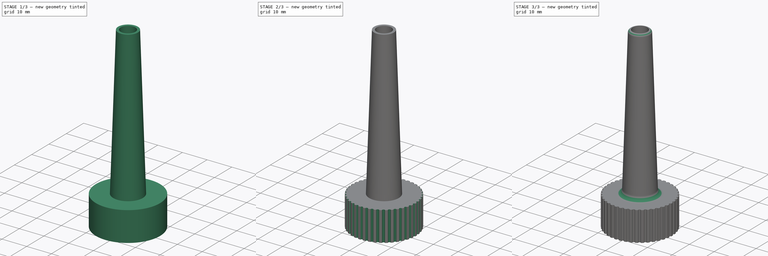
[diagram: build sequence overview — one tinted view per stage of 3, left to right]
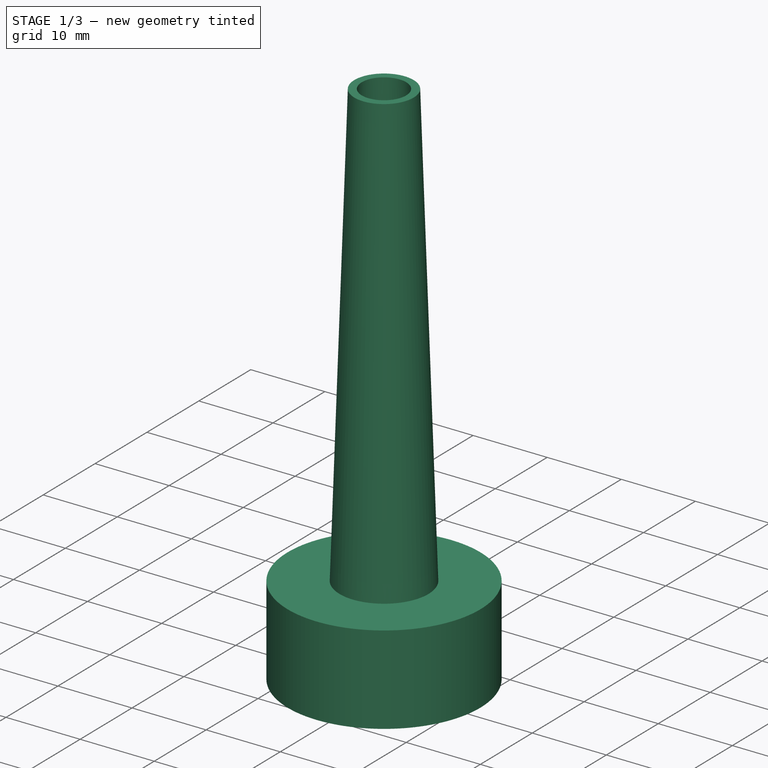
[diagram: stage 1 of 3 — iso view after this stage's code; geometry added in this stage tinted green]
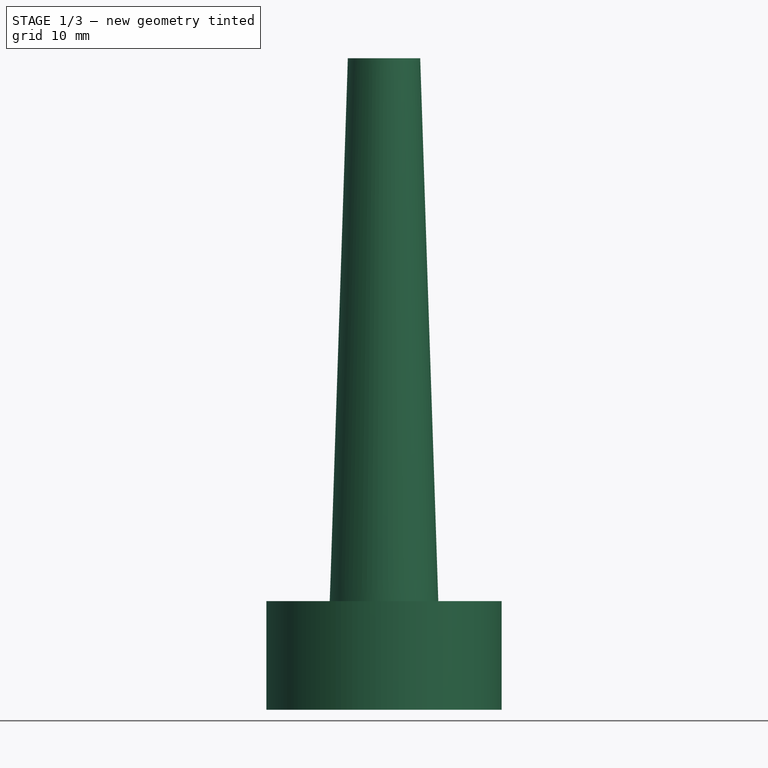
[diagram: stage 1 of 3 — front view after this stage's code; geometry added in this stage tinted green]
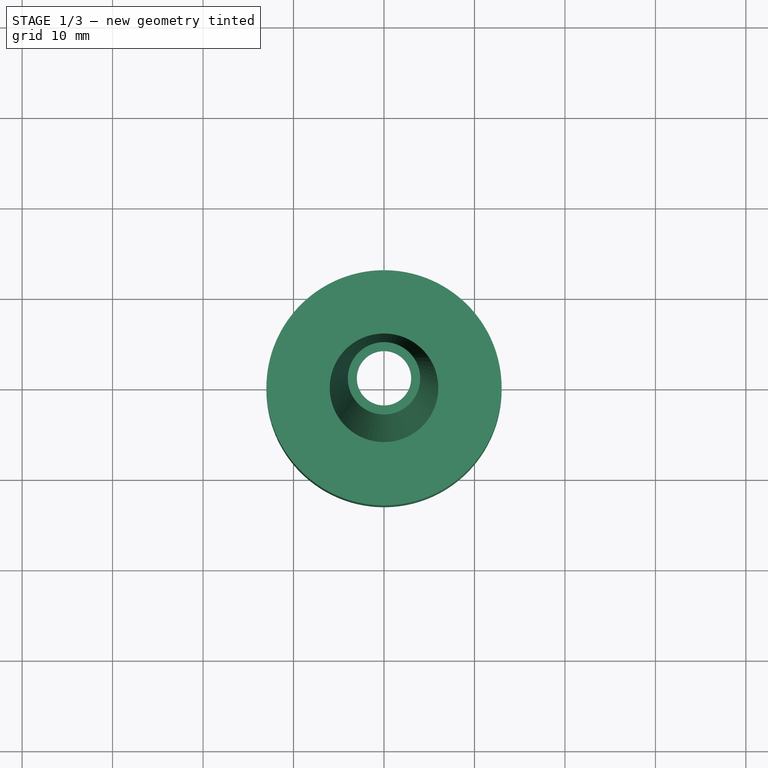
[diagram: stage 1 of 3 — top view after this stage's code; geometry added in this stage tinted green]
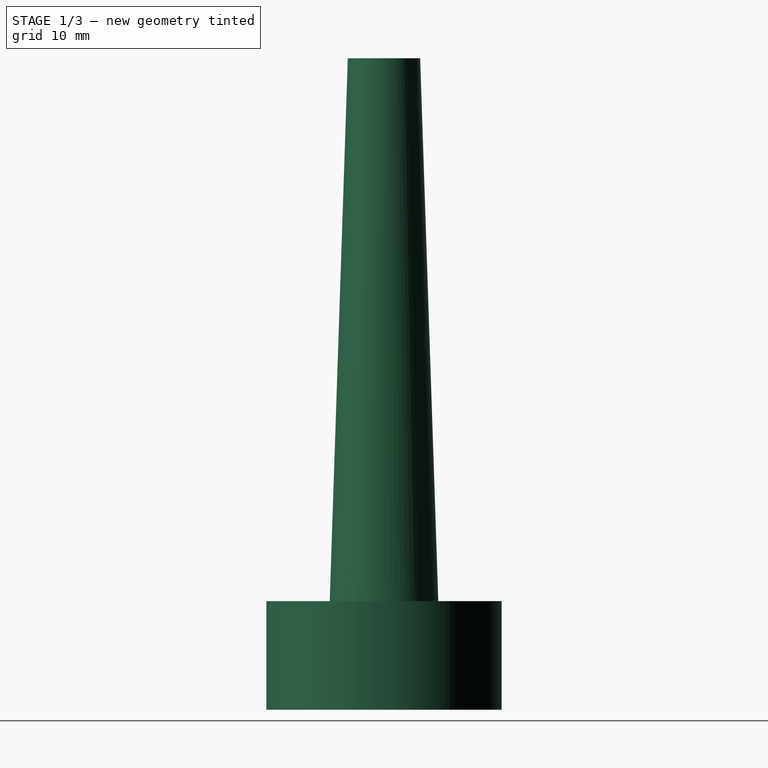
[diagram: stage 1 of 3 — right view after this stage's code; geometry added in this stage tinted green]
FCSTD DOCUMENT  (FreeCAD 1.0R39285 (Git))
Label: Hole Filler Funnel
License: All rights reserved
LicenseURL: http://en.wikipedia.org/wiki/All_rights_reserved
objects: Sketcher::SketchObject×3, PartDesign::Fillet×2, PartDesign::Pad×1, Spreadsheet::Sheet×1, PartDesign::Revolution×1, PartDesign::Hole×1, PartDesign::Pocket×1, PartDesign::PolarPattern×1, PartDesign::Body×1, Measure::MeasurePython×1
note: 27 computed .brp shape members not serialized (recipe doc carries the construction recipe); baked Part::Feature solids carry a one-line shape summary decoded from their .brp

FEATURE [Sketcher::SketchObject] Sketch
  ArcFitTolerance = 1e-06
  AttachmentSupport = -> [XY_Plane]
  FullyConstrained = true
  MakeInternals = false
  MapMode = 5
  expr: Constraints[1] = Spreadsheet.base_width
  expr: Constraints[3] = Spreadsheet.funnel_base_hole_width
  sketch-geometry (2):
    g0: Circle CenterX=0 CenterY=0 CenterZ=0 NormalX=0 NormalY=0 NormalZ=1 AngleXU=0 Radius=13
    g1: Circle CenterX=0 CenterY=0 CenterZ=0 NormalX=0 NormalY=0 NormalZ=1 AngleXU=0 Radius=5
  constraints (4):
    c: Coincident(g0,g-1)
    c: Diameter(g0) = 26
    c: Coincident(g1,g0)
    c: Diameter(g1) = 10
FEATURE [PartDesign::Pad] Pad
  Direction = (0,0,1)
  Length = 12
  Length2 = 10
  Profile = -> Sketch
  ReferenceAxis = -> Sketch [N_Axis]
  Suppressed = false
  Type = 0
  expr: Length = Spreadsheet.base_height
FEATURE [Spreadsheet::Sheet] Spreadsheet
  cells = A1='base_width; B1(base_width)=26; A2='base_hole_depth; B2(base_hole_depth)=8; A3='base_height; B3(base_height)=12; A4='base_knurling_depth; B4(base_knurling_depth)=0.5; A5='base_knurling_occurrences; B5(base_knurling_occurrences)=42; A6='base_edge_fillet_radius; B6(base_edge_fillet_radius)=2; A7='funnel_tip_hole_width; B7(funnel_tip_hole_width)=6; A8='funnel_length; B8(funnel_length)=60; A9='funnel_tip_fillet_radius; B9(funnel_tip_fillet_radius)=1; A10='funnel_base_hole_width; B10(funnel_base_hole_width)=10; A11='funnel_wall_thickness; B11(funnel_wall_thickness)=1
FEATURE [Sketcher::SketchObject] Sketch001
  ArcFitTolerance = 1e-06
  AttachmentSupport = -> [XZ_Plane]
  FullyConstrained = true
  MakeInternals = false
  MapMode = 5
  Placement = pos=(0,0,0) rot=(1,0,0;1.5708rad)
  expr: Constraints[10] = Spreadsheet.funnel_base_hole_width / 2
  expr: Constraints[11] = Spreadsheet.funnel_tip_hole_width / 2
  expr: Constraints[6] = Spreadsheet.funnel_wall_thickness
  expr: Constraints[8] = Spreadsheet.base_height
  expr: Constraints[9] = Spreadsheet.funnel_length
  sketch-geometry (4):
    g0: LineSegment StartX=3 StartY=72 StartZ=0 EndX=4 EndY=72 EndZ=0
    g1: LineSegment StartX=3 StartY=72 StartZ=0 EndX=5 EndY=12 EndZ=0
    g2: LineSegment StartX=4 StartY=72 StartZ=0 EndX=6 EndY=12 EndZ=0
    g3: LineSegment StartX=5 StartY=12 StartZ=0 EndX=6 EndY=12 EndZ=0
  constraints (12):
    c: Horizontal(g0)
    c: Coincident(g1,g0)
    c: Coincident(g2,g0)
    c: Coincident(g3,g1)
    c: Coincident(g3,g2)
    c: Horizontal(g3)
    c: DistanceX(g0,g0) = 1
    c: Parallel(g1,g2)
    c: DistanceY(g-1,g2) = 12
    c: DistanceY(g2,g0) = 60
    c: DistanceX(g-1,g1) = 5
    c: DistanceX(g-1,g0) = 3
FEATURE [PartDesign::Revolution] Revolution
  Angle = 360
  Angle2 = 60
  Axis = (0,2e-16,1)
  Base = (0,0,0)
  BaseFeature = -> Pad
  Profile = -> Sketch001
  ReferenceAxis = -> Sketch001 [V_Axis]
  Reversed = true
  Suppressed = false
  Type = 0
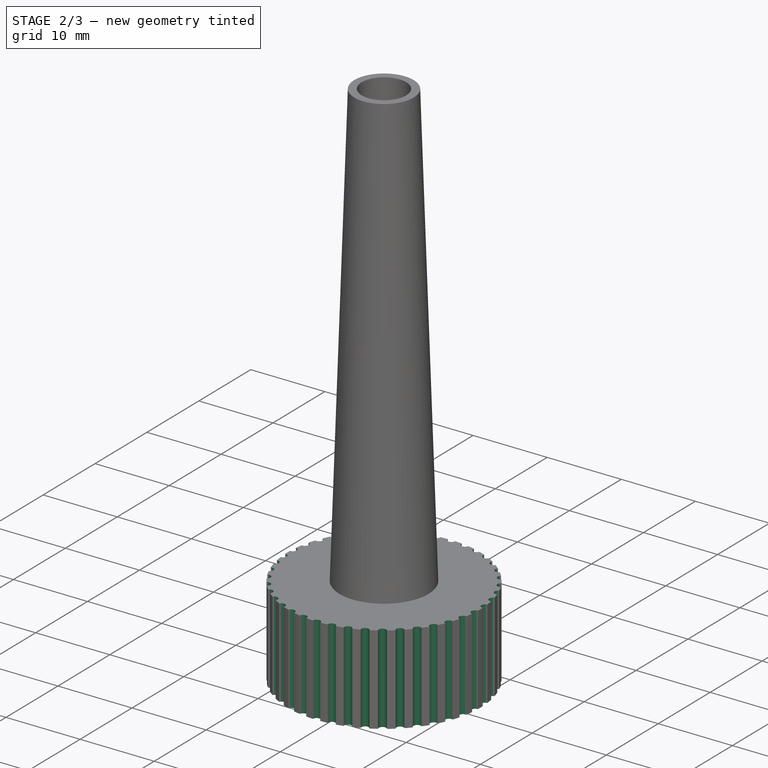
[diagram: stage 2 of 3 — iso view after this stage's code; geometry added in this stage tinted green]
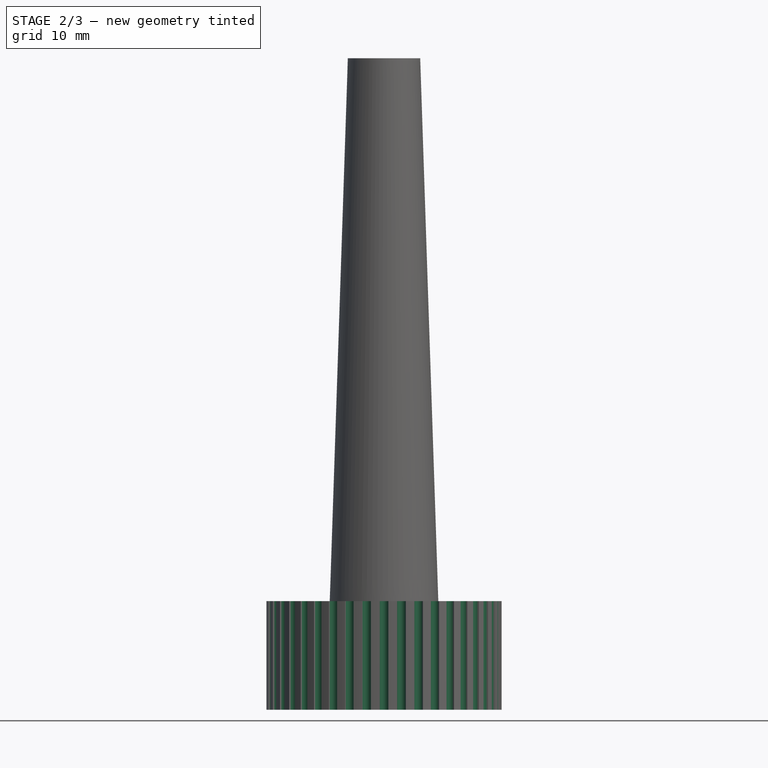
[diagram: stage 2 of 3 — front view after this stage's code; geometry added in this stage tinted green]
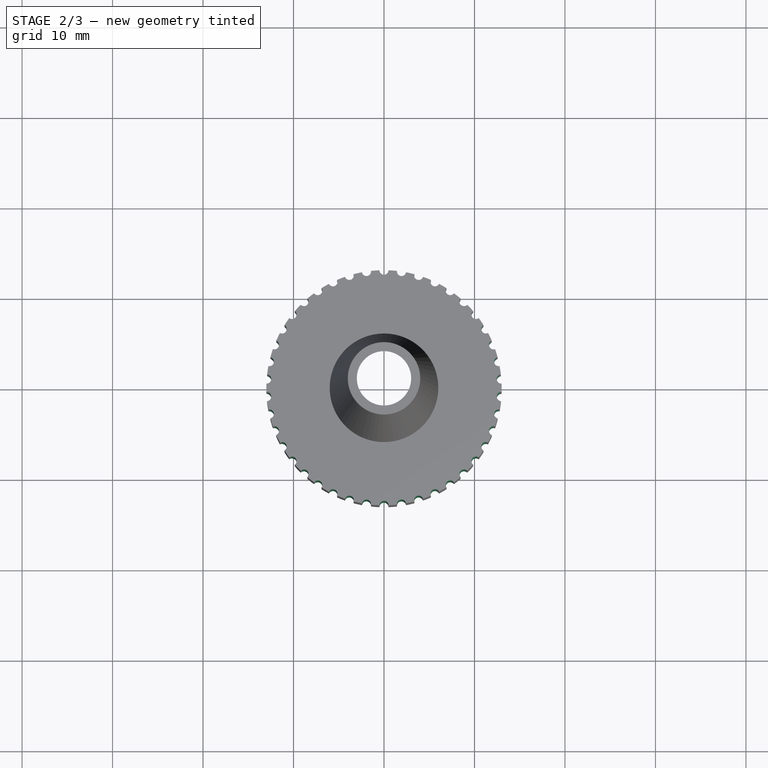
[diagram: stage 2 of 3 — top view after this stage's code; geometry added in this stage tinted green]
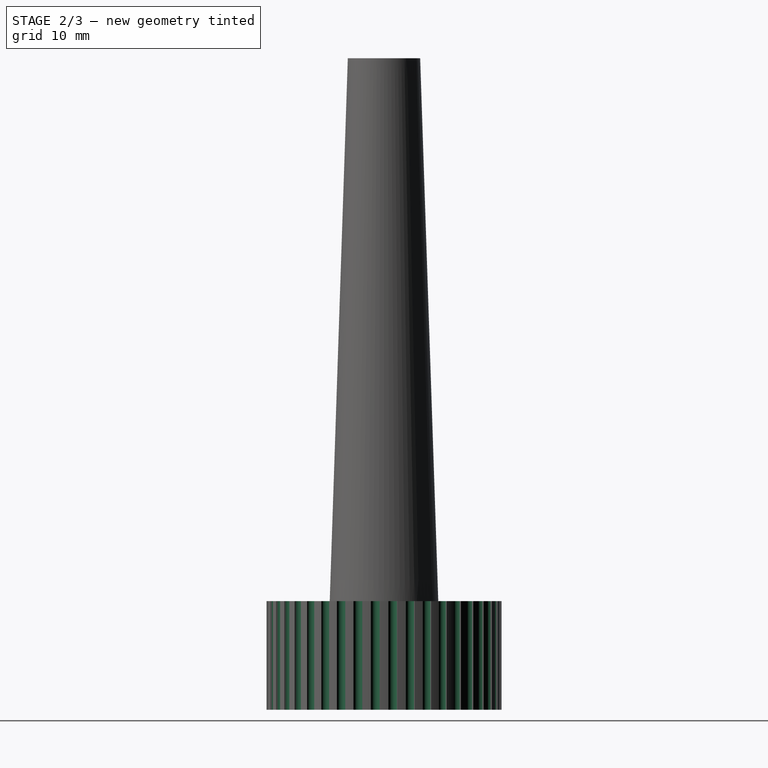
[diagram: stage 2 of 3 — right view after this stage's code; geometry added in this stage tinted green]
FEATURE [PartDesign::Hole] Hole
  BaseFeature = -> Revolution
  CustomThreadClearance = 0
  Depth = 8
  DepthType = 0
  Diameter = 21.048
  DrillForDepth = false
  DrillPoint = 1
  DrillPointAngle = 118
  HoleCutCountersinkAngle = 90
  HoleCutCustomValues = false
  HoleCutDepth = 0
  HoleCutDiameter = 21.15
  HoleCutType = 0
  ModelThread = true
  Profile = -> Revolution [Face6]
  Suppressed = false
  Tapered = false
  TaperedAngle = 90
  ThreadClass = 0
  ThreadDepth = 8
  ThreadDepthType = 0
  ThreadDirection = 0
  ThreadFit = 0
  ThreadSize = 26
  ThreadType = 1
  Threaded = true
  UseCustomThreadClearance = false
  expr: Depth = Spreadsheet.base_hole_depth
FEATURE [Sketcher::SketchObject] Sketch003
  ArcFitTolerance = 1e-06
  AttachmentSupport = -> [Hole]
  FullyConstrained = true
  MakeInternals = false
  MapMode = 5
  Placement = pos=(0,0,12) rot=(0,0,1;0rad)
  expr: Constraints[3] = Spreadsheet.base_knurling_depth
  expr: Constraints[5] = Spreadsheet.base_width / 2
  sketch-geometry (2):
    g0: ArcOfCircle CenterX=0 CenterY=13 CenterZ=0 NormalX=0 NormalY=0 NormalZ=1 AngleXU=0 Radius=0.5 StartAngle=3.14159 EndAngle=6.28319
    g1: LineSegment StartX=0.5 StartY=13 StartZ=0 EndX=-0.5 EndY=13 EndZ=0
  constraints (7):
    c: Coincident(g1,g0)
    c: Coincident(g1,g0)
    c: Horizontal(g0,g0)
    c: Radius(g0) = 0.5
    c: Vertical(g-1,g0)
    c: DistanceY(g-1,g0) = 13
    c: Horizontal(g0,g0)
FEATURE [PartDesign::Pocket] Pocket
  BaseFeature = -> Hole
  Direction = (0,0,-1)
  Length = 5
  Length2 = 5
  Profile = -> Sketch003
  ReferenceAxis = -> Sketch003 [N_Axis]
  Suppressed = false
  Type = 1
FEATURE [PartDesign::PolarPattern] PolarPattern
  Angle = 360
  Axis = -> Sketch003 [N_Axis]
  BaseFeature = -> Pocket
  Mode = 0
  Occurrences = 42
  Offset = 120
  Originals = -> [Pocket]
  Suppressed = false
  TransformMode = 0
  expr: Occurrences = Spreadsheet.base_knurling_occurrences
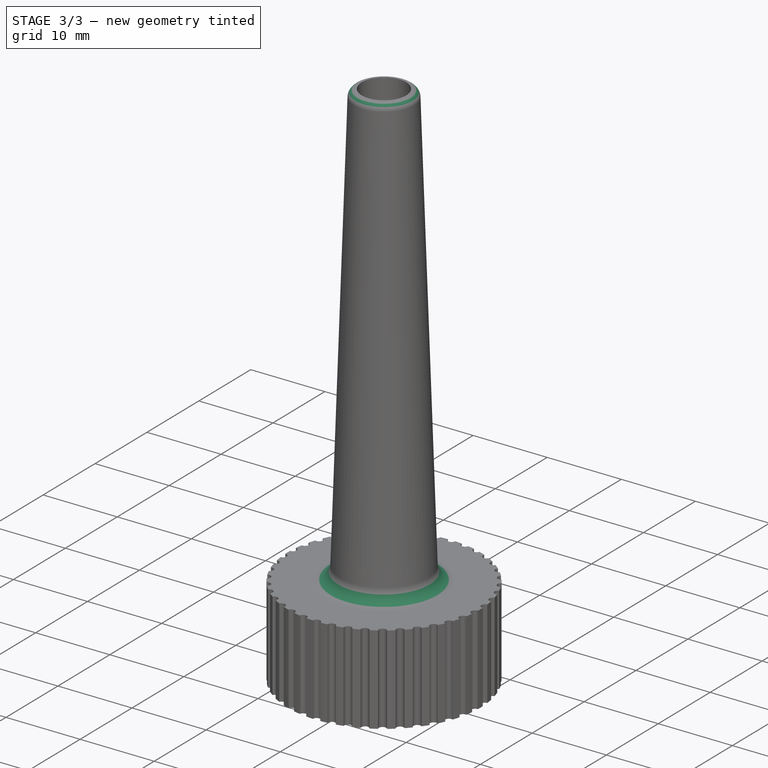
[diagram: stage 3 of 3 — iso view after this stage's code; geometry added in this stage tinted green]
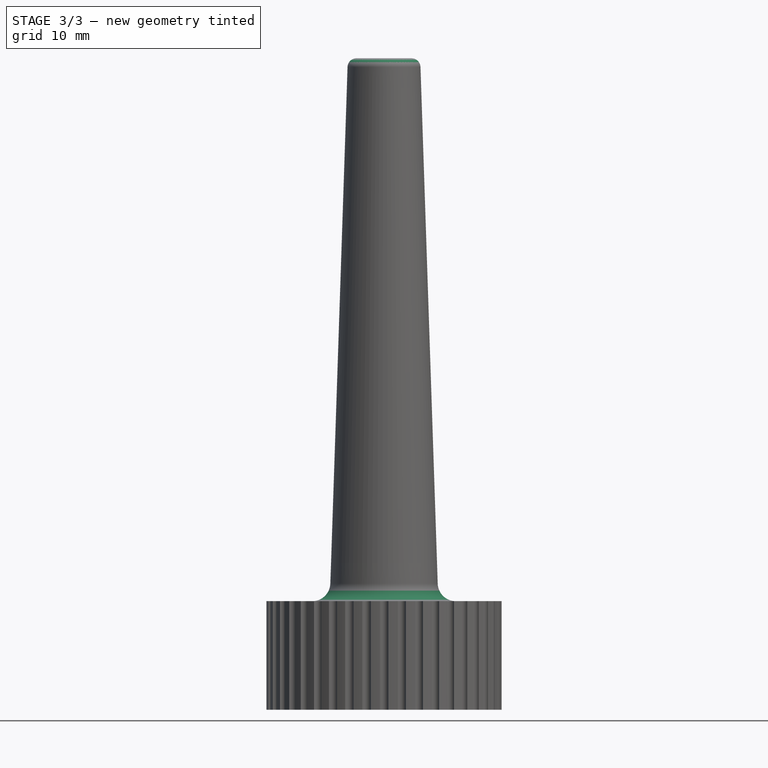
[diagram: stage 3 of 3 — front view after this stage's code; geometry added in this stage tinted green]
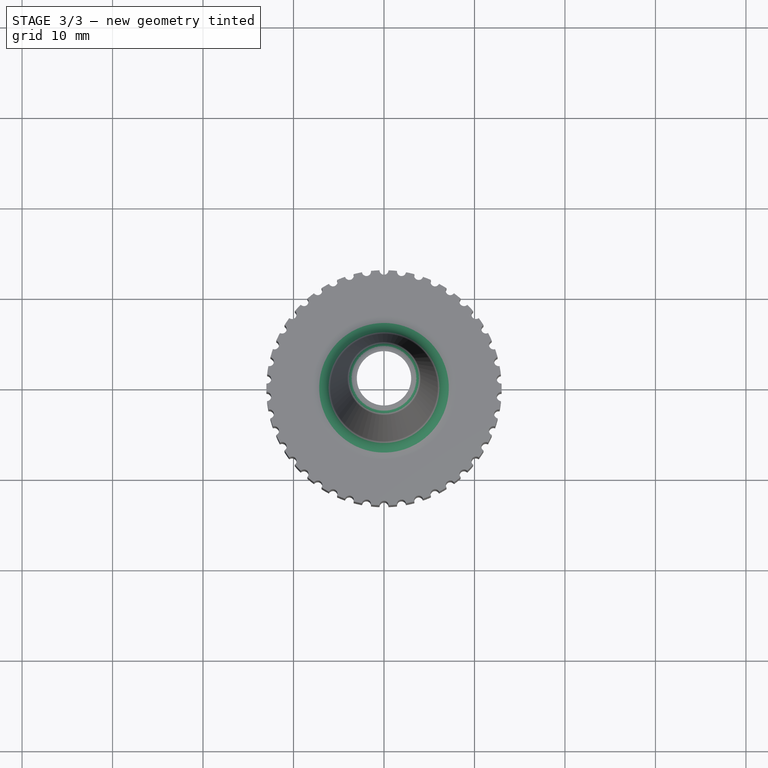
[diagram: stage 3 of 3 — top view after this stage's code; geometry added in this stage tinted green]
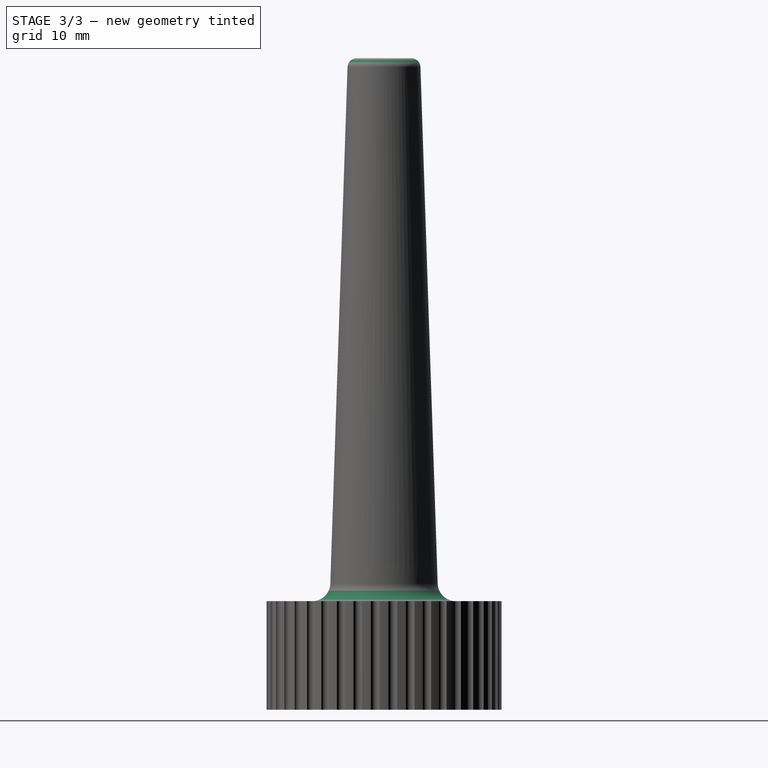
[diagram: stage 3 of 3 — right view after this stage's code; geometry added in this stage tinted green]
FEATURE [PartDesign::Fillet] Fillet
  Base = -> PolarPattern [Edge6]
  BaseFeature = -> PolarPattern
  Radius = 2
  SupportTransform = false
  Suppressed = false
  UseAllEdges = false
  expr: Radius = Spreadsheet.base_edge_fillet_radius
FEATURE [PartDesign::Fillet] Fillet001
  Base = -> Fillet [Edge3]
  BaseFeature = -> Fillet
  Radius = 1
  SupportTransform = false
  Suppressed = false
  UseAllEdges = false
  expr: Radius = Spreadsheet.funnel_tip_fillet_radius
FEATURE [PartDesign::Body] Body
  AllowCompound = false
  Group = -> [Sketch,Pad,Sketch001,Revolution,Hole,Sketch003,Pocket,PolarPattern,Fillet,Fillet001]
  Origin = -> Origin
  Tip = -> Fillet001
FEATURE [Measure::MeasurePython] Center_of_Mass  label="Center_of_Mass: COM
X: -53,98 µm
Y: -51,15 µm
Z: 20,86 mm"  # WARN: FeaturePython — macro-defined, semantics opaque (R4)
  Element = -> Body
  Placement = pos=(-0.0539776,-0.0511463,20.8618) rot=(0,0,1;0rad)
  Result = (-0.0539776,-0.0511463,20.8618)
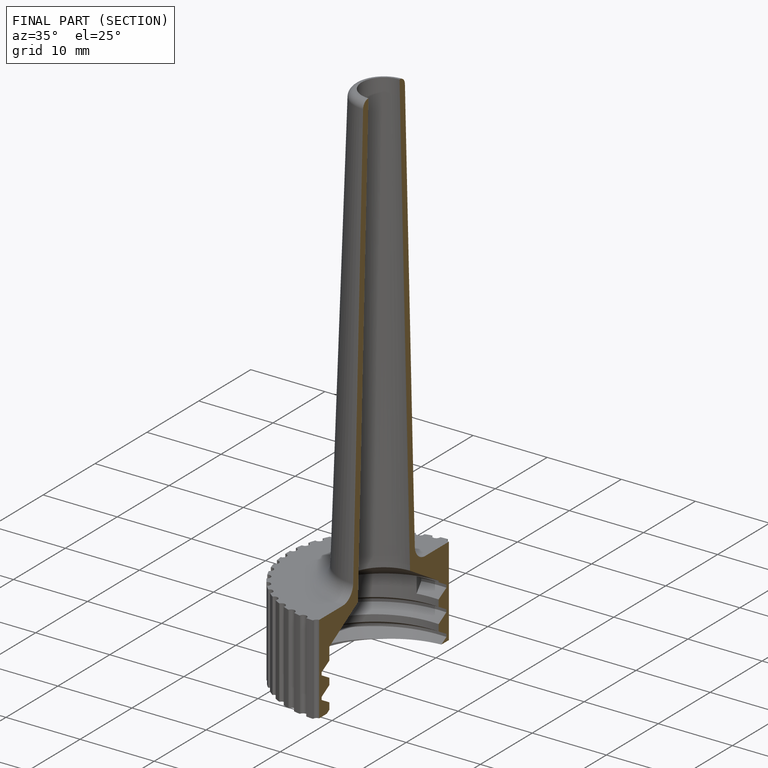
[diagram: finished part — half-section view (interior)]
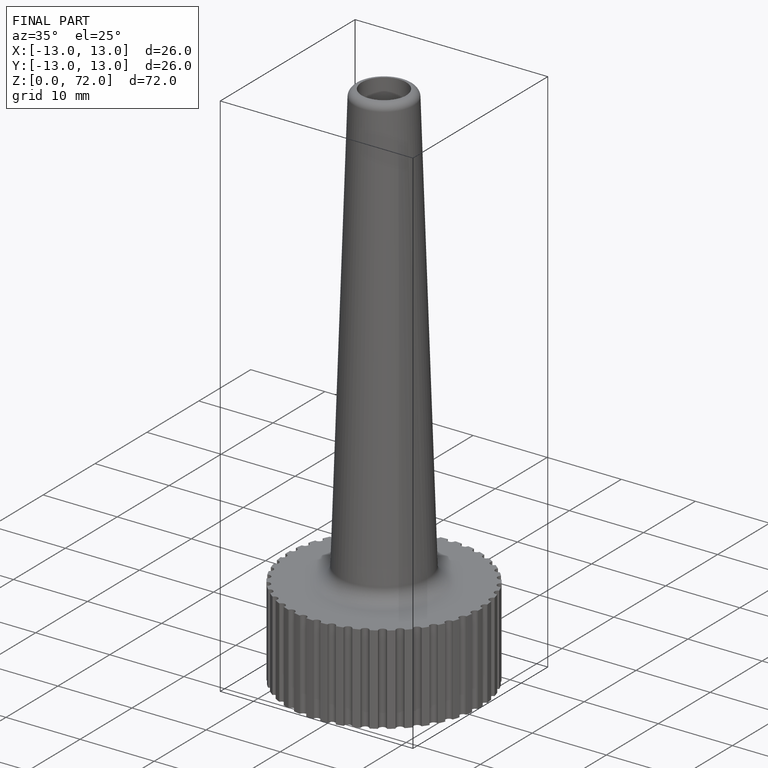
[diagram: finished part — iso view with bounding-box wireframe]
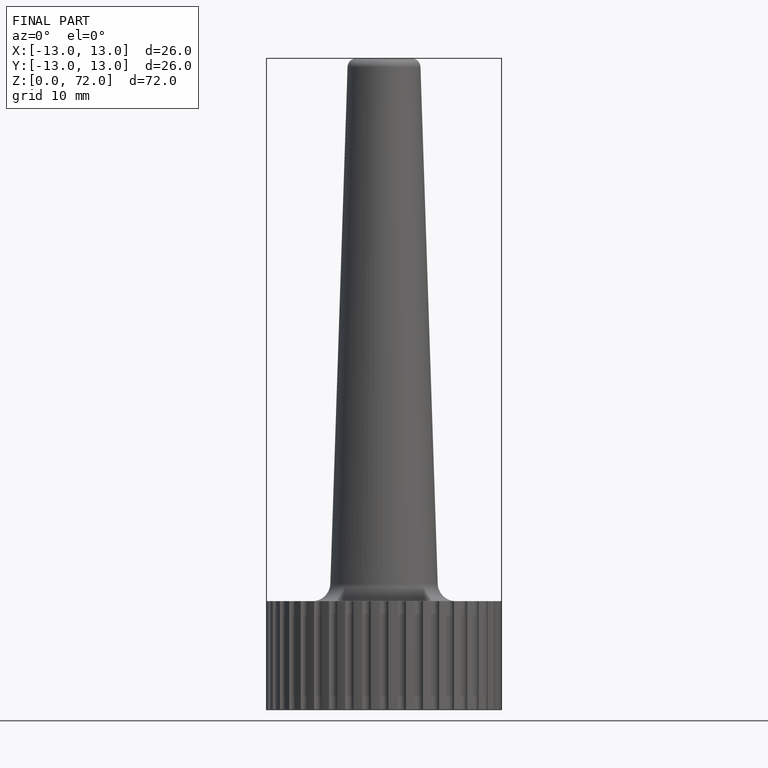
[diagram: finished part — front view with bounding-box wireframe]
